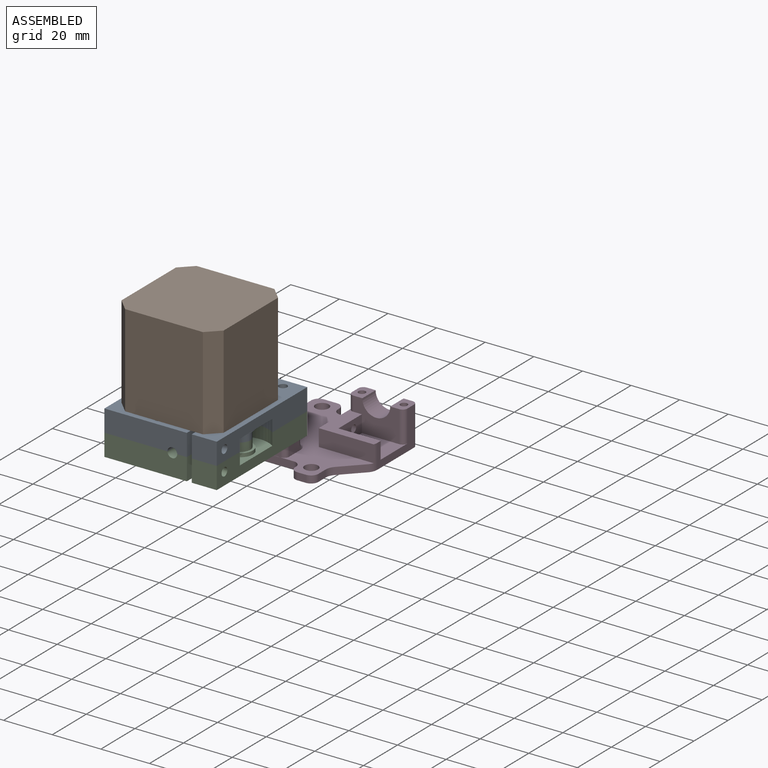
[diagram: assembled view]
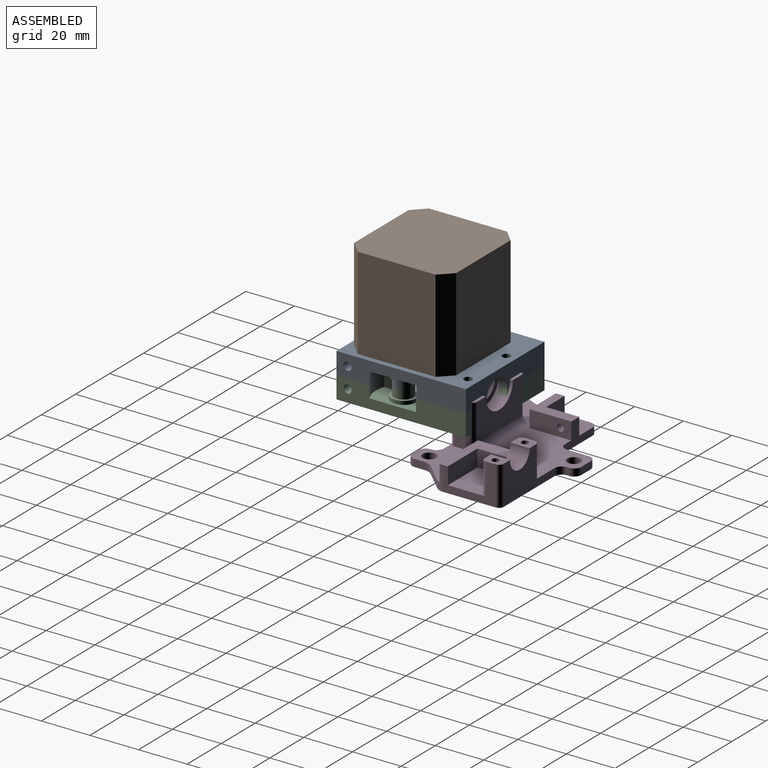
[diagram: assembled view, second angle]
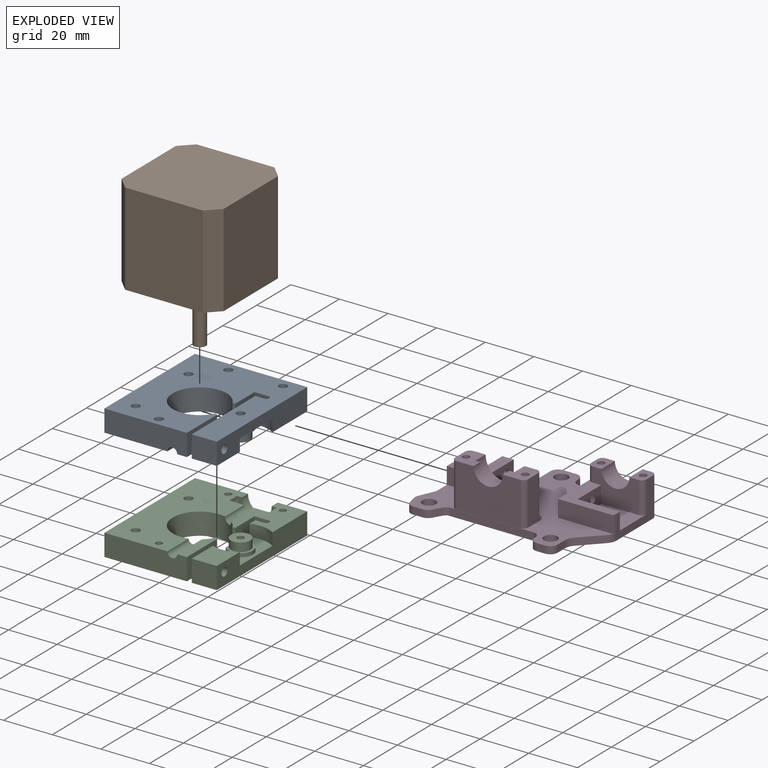
[diagram: exploded view]
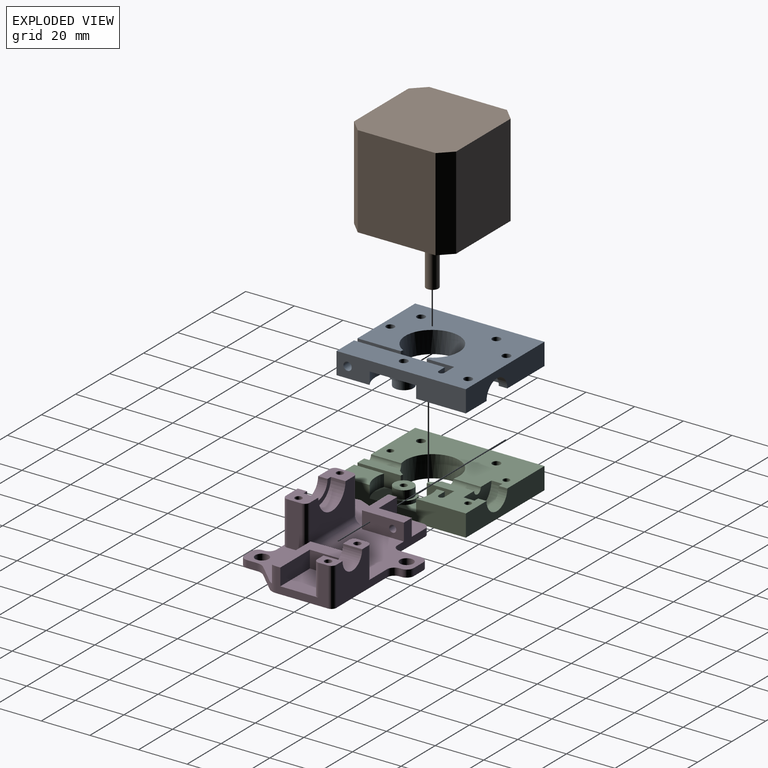
[diagram: exploded view, second angle]
ASSEMBLY  parts=4 mates=2
PART A: 41 faces, bbox 46.2x53.2x9 mm
  f0: plane 53.2x25.93mm, normal (0,0,-1), area 1042.9mm2, adj f3,f9,f10,f11,f16,f18,f21,f22
  f1: plane 18.06x3.98mm, normal (0,0,-1), area 65.8mm2, adj f3,f7,f11,f34,f39
  f2: plane 24.92x16.27mm, normal (0,0,-1), area 253mm2, adj f3,f4,f5,f8,f9,f12,f13,f14
  f3: cylinder r=11.1mm len=22.2mm, axis (0,0,-1), area 518mm2, adj f0,f1,f2,f20,f33,f34,f39,f40
  f4: plane 37.34x9mm, normal (-1,0,0), area 234.7mm2, adj f2,f6,f14,f15,f19,f20,f23,f24
  f5: plane 53.2x9mm, normal (1,0,0), area 374.2mm2, adj f2,f9,f15,f19,f20,f23,f25,f26
  f6: plane 8x7.89mm, normal (0,0,-1), area 41.1mm2, adj f4,f27,f38
  f7: plane 17.8x9mm, normal (1,0,0), area 154.1mm2, adj f1,f11,f20,f36,f39
  f8: plane 11.24x9mm, normal (1,0,0), area 101.2mm2, adj f2,f12,f20,f40
  f9: plane 46.2x9mm, normal (0,1,0), area 357.4mm2, adj f0,f2,f5,f10,f20,f32
  f10: plane 53.2x9mm, normal (-1,0,0), area 478.8mm2, adj f0,f9,f11,f20
  f11: plane 33.91x9mm, normal (0,-1,0), area 298.9mm2, adj f0,f1,f7,f10,f20,f34
  f12: plane 9x5.65mm, normal (0,-1,0), area 50.9mm2, adj f2,f8,f13,f20
  f13: cylinder r=1.22mm len=9mm, axis (0,0,1), area 34.4mm2, adj f2,f12,f14,f20
  f14: plane 9x3.65mm, normal (0,1,0), area 32.9mm2, adj f2,f4,f13,f20
  f15: plane 10.29x9mm, normal (0,-1,0), area 92.6mm2, adj f4,f5,f19,f20
  f16: cylinder r=1.7mm len=9mm, axis (0,0,1), area 96.1mm2, adj f0,f20
  f17: cylinder r=1.7mm len=9mm, axis (0,0,1), area 96.1mm2, adj f2,f20
  f18: cylinder r=1.7mm len=9mm, axis (0,0,1), area 96.1mm2, adj f0,f20
  f19: plane 13.62x10.29mm, normal (0,0,-1), area 125mm2, adj f4,f5,f15,f25
  f20: plane 53.2x46.2mm, normal (0,0,1), area 1923mm2, adj f3,f4,f5,f7,f8,f9,f10,f11
  f21: cylinder r=1.7mm len=9mm, axis (0,0,-1), area 96.1mm2, adj f0,f20
  f22: cylinder r=1.7mm len=9mm, axis (0,0,-1), area 96.1mm2, adj f0,f20
  f23: cylinder r=11.5mm len=10.29mm, axis (0,0,-1), area 53.8mm2, adj f2,f4,f5,f26
  f24: cylinder r=5mm len=10mm, axis (0,0,-1), area 36.9mm2, adj f4,f26,f28
  f25: cylinder r=11.5mm len=10.29mm, axis (0,0,-1), area 53.8mm2, adj f4,f5,f19,f26
  f26: plane 23x10.29mm, normal (0,0,-1), area 153.2mm2, adj f4,f5,f23,f24,f25
  f27: cylinder r=4mm len=8mm, axis (0,0,-1), area 81.4mm2, adj f4,f6,f28
  f28: plane 10x8.89mm, normal (0,0,-1), area 23.7mm2, adj f4,f24,f27
  f29: plane 16.4x8.2mm, normal (0,1,0), area 99.3mm2, adj f0,f2,f31,f33
  f30: plane 16.4x8.2mm, normal (0,-1,0), area 47.2mm2, adj f0,f2,f31,f32
  f31: cylinder r=8.2mm len=16.4mm, axis (0,-1,0), area 115.9mm2, adj f0,f2,f29,f30
  f32: cylinder r=6.1mm len=12.2mm, axis (0,-1,0), area 67.3mm2, adj f0,f2,f9,f30
  f33: cylinder r=2mm len=13.34mm, axis (0,-1,0), area 76.6mm2, adj f0,f2,f3,f29
  f34: cylinder r=2mm len=14.5mm, axis (0,-1,0), area 83.9mm2, adj f0,f1,f3,f11
  f35: plane 2.8x2.8mm, normal (1,0,0), area 6.2mm2, adj f36
  f36: cylinder r=1.4mm len=7.71mm, axis (1,0,0), area 67.8mm2, adj f7,f35
  f37: cylinder r=1.7mm len=10.29mm, axis (1,0,0), area 109.9mm2, adj f4,f5
  f38: cylinder r=1.7mm len=9mm, axis (0,0,-1), area 96.1mm2, adj f6,f20
  f39: plane 9x1.05mm, normal (0.24,0.97,0), area 9.8mm2, adj f1,f3,f7,f20
  f40: plane 9x1.05mm, normal (0.24,-0.97,0), area 9.8mm2, adj f2,f3,f8,f20
PART B: 22 faces, bbox 42x42x62 mm
  f0: plane 38x32mm, normal (-1,0,0), area 1216mm2, adj f4,f5,f8,f9
  f1: plane 38x32mm, normal (0,-1,0), area 1216mm2, adj f4,f5,f7,f9
  f2: plane 38x32mm, normal (1,0,0), area 1216mm2, adj f4,f5,f6,f7
  f3: plane 38x32mm, normal (0,1,0), area 1216mm2, adj f4,f5,f6,f8
  f4: plane 42x42mm, normal (0,0,1), area 1305.6mm2, adj f0,f1,f2,f3,f6,f7,f8,f9
  f5: plane 42x42mm, normal (0,0,-1), area 1714mm2, adj f0,f1,f2,f3,f6,f7,f8,f9
  f6: plane 38x5mm, normal (0.71,0.71,0), area 268.7mm2, adj f2,f3,f4,f5
  f7: plane 38x5mm, normal (0.71,-0.71,0), area 268.7mm2, adj f1,f2,f4,f5
  f8: plane 38x5mm, normal (-0.71,0.71,0), area 268.7mm2, adj f0,f3,f4,f5
  f9: plane 38x5mm, normal (-0.71,-0.71,0), area 268.7mm2, adj f0,f1,f4,f5
  f10: cylinder r=11mm len=22mm, axis (0,0,-1), area 138.2mm2, adj f4,f11
  f11: plane 22x22mm, normal (0,0,1), area 360.5mm2, adj f10,f12
  f12: cylinder r=2.5mm len=22mm, axis (0,0,-1), area 345.6mm2, adj f11,f13
  f13: plane 5x5mm, normal (0,0,1), area 19.6mm2, adj f12
  f14: cylinder r=1.5mm len=25mm, axis (0,0,1), area 235.6mm2, adj f4,f15
  f15: plane 3x3mm, normal (0,0,1), area 7.1mm2, adj f14
  f16: cylinder r=1.5mm len=25mm, axis (0,0,1), area 235.6mm2, adj f4,f17
  f17: plane 3x3mm, normal (0,0,1), area 7.1mm2, adj f16
  f18: cylinder r=1.5mm len=25mm, axis (0,0,1), area 235.6mm2, adj f4,f19
  f19: plane 3x3mm, normal (0,0,1), area 7.1mm2, adj f18
  f20: cylinder r=1.5mm len=25mm, axis (0,0,1), area 235.6mm2, adj f4,f21
  f21: plane 3x3mm, normal (0,0,1), area 7.1mm2, adj f20
PART C: 41 faces, bbox 46.2x53.2x9 mm
  f0: plane 53.2x25.93mm, normal (0,0,1), area 1049.6mm2, adj f3,f8,f9,f10,f17,f19,f22,f23
  f1: plane 18.06x3.98mm, normal (0,0,1), area 65.8mm2, adj f3,f7,f10,f34,f40
  f2: plane 24.92x16.27mm, normal (0,0,1), area 256.3mm2, adj f3,f4,f8,f11,f12,f13,f14,f16
  f3: cylinder r=11.1mm len=22.2mm, axis (0,0,1), area 518mm2, adj f0,f1,f2,f21,f30,f34,f39,f40
  f4: plane 37.34x9mm, normal (-1,0,0), area 234.7mm2, adj f2,f5,f6,f14,f15,f20,f21,f24
  f5: plane 8x7.89mm, normal (0,0,1), area 44mm2, adj f4,f27,f38
  f6: cylinder r=5mm len=10mm, axis (0,0,1), area 36.9mm2, adj f4,f26,f28
  f7: plane 17.8x9mm, normal (1,0,0), area 154.1mm2, adj f1,f10,f21,f35,f40
  f8: plane 46.2x9mm, normal (0,1,0), area 357.4mm2, adj f0,f2,f9,f18,f21,f31
  f9: plane 53.2x9mm, normal (-1,0,0), area 478.8mm2, adj f0,f8,f10,f21
  f10: plane 33.91x9mm, normal (0,-1,0), area 298.9mm2, adj f0,f1,f7,f9,f21,f34
  f11: plane 11.24x9mm, normal (1,0,0), area 101.2mm2, adj f2,f12,f21,f39
  f12: plane 9x5.65mm, normal (0,-1,0), area 50.9mm2, adj f2,f11,f13,f21
  f13: cylinder r=1.22mm len=9mm, axis (0,0,-1), area 34.4mm2, adj f2,f12,f14,f21
  f14: plane 9x3.65mm, normal (0,1,0), area 32.9mm2, adj f2,f4,f13,f21
  f15: plane 10.29x9mm, normal (0,-1,0), area 92.6mm2, adj f4,f18,f20,f21
  f16: cylinder r=1.35mm len=9mm, axis (0,0,-1), area 76.3mm2, adj f2,f21
  f17: cylinder r=1.35mm len=9mm, axis (0,0,-1), area 76.3mm2, adj f0,f21
  f18: plane 53.2x9mm, normal (1,0,0), area 374.2mm2, adj f2,f8,f15,f20,f21,f24,f25,f26
  f19: cylinder r=1.35mm len=9mm, axis (0,0,-1), area 76.3mm2, adj f0,f21
  f20: plane 13.62x10.29mm, normal (0,0,1), area 125mm2, adj f4,f15,f18,f25
  f21: plane 53.2x46.2mm, normal (0,0,-1), area 1936mm2, adj f3,f4,f7,f8,f9,f10,f11,f12
  f22: cylinder r=1.7mm len=9mm, axis (0,0,1), area 96.1mm2, adj f0,f21
  f23: cylinder r=1.7mm len=9mm, axis (0,0,1), area 96.1mm2, adj f0,f21
  f24: cylinder r=11.5mm len=10.29mm, axis (0,0,1), area 53.8mm2, adj f2,f4,f18,f26
  f25: cylinder r=11.5mm len=10.29mm, axis (0,0,1), area 53.8mm2, adj f4,f18,f20,f26
  f26: plane 23x10.29mm, normal (0,0,1), area 153.2mm2, adj f4,f6,f18,f24,f25
  f27: cylinder r=4mm len=8mm, axis (0,0,1), area 81.4mm2, adj f4,f5,f28
  f28: plane 10x8.89mm, normal (0,0,1), area 23.7mm2, adj f4,f6,f27
  f29: plane 16.4x8.2mm, normal (0,1,0), area 99.3mm2, adj f0,f2,f30,f33
  f30: cylinder r=2mm len=13.34mm, axis (0,-1,0), area 76.6mm2, adj f0,f2,f3,f29
  f31: cylinder r=6.1mm len=12.2mm, axis (0,-1,0), area 67.3mm2, adj f0,f2,f8,f32
  f32: plane 16.4x8.2mm, normal (0,-1,0), area 47.2mm2, adj f0,f2,f31,f33
  f33: cylinder r=8.2mm len=16.4mm, axis (0,-1,0), area 115.9mm2, adj f0,f2,f29,f32
  f34: cylinder r=2mm len=14.5mm, axis (0,-1,0), area 83.9mm2, adj f0,f1,f3,f10
  f35: cylinder r=1.4mm len=7.71mm, axis (1,0,0), area 67.8mm2, adj f7,f36
  f36: plane 2.8x2.8mm, normal (1,0,0), area 6.2mm2, adj f35
  f37: cylinder r=1.7mm len=10.29mm, axis (1,0,0), area 109.9mm2, adj f4,f18
  f38: cylinder r=1.4mm len=9mm, axis (0,0,1), area 79.2mm2, adj f5,f21
  f39: plane 9x1.05mm, normal (0.24,-0.97,0), area 9.8mm2, adj f2,f3,f11,f21
  f40: plane 9x1.05mm, normal (0.24,0.97,0), area 9.8mm2, adj f1,f3,f7,f21
PART D: 77 faces, bbox 71.9x52.8x22 mm
  f0: plane 18.87x13mm, normal (0,1,0), area 168.8mm2, adj f1,f3,f37,f40,f50,f51,f67,f68
  f1: plane 7.85x5.69mm, normal (0,0,1), area 36.3mm2, adj f0,f6,f38,f49,f51,f67,f69
  f2: plane 71.56x52.75mm, normal (0,0,1), area 1368mm2, adj f6,f7,f8,f9,f10,f11,f12,f13
  f3: plane 17.35x15.77mm, normal (0,0,1), area 239.8mm2, adj f0,f24,f36,f37,f68
  f4: plane 13.59x10.86mm, normal (0,0,1), area 145.6mm2, adj f10,f11,f41,f42,f56
  f5: plane 9.87x9.04mm, normal (0,0,1), area 68.9mm2, adj f27,f28,f29,f30,f33,f34,f35,f73
  f6: plane 29.81x16mm, normal (0,-1,0), area 282.9mm2, adj f1,f2,f25,f50,f51,f52,f69,f70
  f7: plane 3x0.86mm, normal (-1,0,0), area 2.6mm2, adj f2,f25,f52,f53
  f8: plane 5.48x3mm, normal (0,-1,0), area 16.5mm2, adj f2,f25,f53,f54
  f9: plane 8.89x3mm, normal (1,0,0), area 26.7mm2, adj f2,f25,f54,f55
  f10: plane 16.35x10mm, normal (0,-1,0), area 81.4mm2, adj f2,f4,f25,f41,f44,f45,f55,f56
  f11: plane 20.25x10mm, normal (1,0,0), area 86.1mm2, adj f2,f4,f12,f25,f42,f43,f45,f56
  f12: plane 6.88x3mm, normal (0.92,-0.4,0), area 22.5mm2, adj f2,f11,f25,f57
  f13: plane 3.55x3mm, normal (0.97,0.22,0), area 10.9mm2, adj f2,f25,f57,f58
  f14: plane 4.07x3mm, normal (0,1,0), area 12.2mm2, adj f2,f25,f58,f59
  f15: plane 3.38x3mm, normal (-0.87,0.5,0), area 11.7mm2, adj f2,f25,f59,f60
  f16: plane 33.64x3mm, normal (0,1,0), area 100.9mm2, adj f2,f25,f60,f61
  f17: plane 3x0.41mm, normal (1,0,0), area 1.2mm2, adj f2,f25,f61,f62
  f18: plane 3.49x3mm, normal (0,1,0), area 10.5mm2, adj f2,f25,f62,f63
  f19: plane 4.26x3mm, normal (-1,0,0), area 12.8mm2, adj f2,f25,f63,f65
  f20: plane 8.17x7.9mm, normal (-0.72,0.7,0), area 34.1mm2, adj f2,f25,f65,f66
  f21: cylinder r=2.75mm len=5.5mm, axis (0,0,-1), area 51.8mm2, adj f2,f25
  f22: cylinder r=2.75mm len=5.5mm, axis (0,0,-1), area 51.8mm2, adj f2,f25
  f23: cylinder r=2.75mm len=5.5mm, axis (0,0,-1), area 51.8mm2, adj f2,f25
  f24: plane 21.52x16mm, normal (-1,0,0), area 127.9mm2, adj f3,f25,f36,f40,f50,f66,f68,f70
  f25: plane 71.86x52.75mm, normal (0,0,-1), area 2560.5mm2, adj f6,f7,f8,f9,f10,f11,f12,f13
  f26: plane 18x6.83mm, normal (-1,0,0), area 105.9mm2, adj f2,f32,f71,f72,f76
  f27: plane 26.08x15mm, normal (0,-1,0), area 290.6mm2, adj f5,f32,f33,f64,f71,f73
  f28: plane 18x6.87mm, normal (1,0,0), area 106.7mm2, adj f2,f5,f73,f74,f75
  f29: cylinder r=1.45mm len=21mm, axis (0,0,-1), area 191.3mm2, adj f5,f25
  f30: plane 26.08x18mm, normal (0,1,0), area 412.8mm2, adj f2,f5,f32,f35,f75,f76
  f31: cylinder r=1.45mm len=21mm, axis (0,0,-1), area 191.3mm2, adj f25,f32
  f32: plane 9.84x9.04mm, normal (0,0,1), area 68.6mm2, adj f26,f27,f30,f31,f33,f34,f35,f71
  f33: cylinder r=8mm len=16mm, axis (0,-1,0), area 150.8mm2, adj f5,f27,f32,f34
  f34: plane 16x8mm, normal (0,-1,0), area 44mm2, adj f5,f32,f33,f35
  f35: cylinder r=6mm len=12.01mm, axis (0,1,0), area 72.6mm2, adj f5,f30,f32,f34
  f36: plane 17.35x7mm, normal (0,-1,0), area 121.5mm2, adj f3,f24,f37,f40
  f37: plane 13.77x7mm, normal (-1,0,0), area 89.8mm2, adj f0,f3,f36,f40,f47
  f38: plane 23.24x13mm, normal (1,0,0), area 179.1mm2, adj f1,f2,f39,f40,f47,f67,f69
  f39: plane 22.57x7mm, normal (0,1,0), area 158mm2, adj f2,f38,f40,f66
  f40: plane 22.87x19.39mm, normal (0,0,1), area 159.5mm2, adj f0,f24,f36,f37,f38,f39,f66,f67
  f41: plane 13.59x7mm, normal (1,0,0), area 88.5mm2, adj f4,f10,f42,f45,f46
  f42: plane 10.86x7mm, normal (0,-1,0), area 76mm2, adj f4,f11,f41,f45
  f43: plane 15.48x7mm, normal (0,1,0), area 108.4mm2, adj f2,f11,f44,f45
  f44: plane 17.21x7mm, normal (-1,0,0), area 113.9mm2, adj f2,f10,f43,f45,f46
  f45: plane 17.21x15.48mm, normal (0,0,1), area 118.9mm2, adj f10,f11,f41,f42,f43,f44
  f46: cylinder r=1.45mm len=4.62mm, axis (1,0,0), area 42.1mm2, adj f41,f44
  f47: cylinder r=1.45mm len=5.52mm, axis (1,0,0), area 50.3mm2, adj f37,f38
  f48: cylinder r=1.45mm len=16mm, axis (0,0,-1), area 145.8mm2, adj f25,f50
  f49: cylinder r=1.45mm len=16mm, axis (0,0,-1), area 145.8mm2, adj f1,f25
  f50: plane 7.85x5.69mm, normal (0,0,1), area 36.3mm2, adj f0,f6,f24,f48,f51,f68,f70
  f51: cylinder r=5.75mm len=11.5mm, axis (0,1,0), area 141.7mm2, adj f0,f1,f6,f50
  f52: cylinder r=3mm len=3mm, axis (0,0,-1), area 14.1mm2, adj f2,f6,f7,f25
  f53: cylinder r=3mm len=3mm, axis (0,0,-1), area 14.1mm2, adj f2,f7,f8,f25
  f54: cylinder r=3mm len=3mm, axis (0,0,-1), area 14.1mm2, adj f2,f8,f9,f25
  f55: cylinder r=3mm len=3mm, axis (0,0,-1), area 14.1mm2, adj f2,f9,f10,f25
  f56: cylinder r=3mm len=3mm, axis (0,0,-1), area 14.1mm2, adj f4,f10,f11,f25
  f57: cylinder r=3mm len=3mm, axis (0,0,-1), area 5.7mm2, adj f2,f12,f13,f25
  f58: cylinder r=3mm len=3mm, axis (0,0,-1), area 12.1mm2, adj f2,f13,f14,f25
  f59: cylinder r=3mm len=3mm, axis (0,0,-1), area 9.5mm2, adj f2,f14,f15,f25
  f60: cylinder r=3mm len=3mm, axis (0,0,1), area 9.5mm2, adj f2,f15,f16,f25
  f61: cylinder r=3mm len=3mm, axis (0,0,1), area 14.1mm2, adj f2,f16,f17,f25
  f62: cylinder r=3mm len=3mm, axis (0,0,-1), area 14.1mm2, adj f2,f17,f18,f25
  f63: cylinder r=3mm len=3mm, axis (0,0,-1), area 14.1mm2, adj f2,f18,f19,f25
  f64: cylinder r=3mm len=26.08mm, axis (1,0,0), area 122.9mm2, adj f2,f27,f72,f74
  f65: cylinder r=5mm len=3.48mm, axis (0,0,1), area 11.5mm2, adj f2,f19,f20,f25
  f66: cylinder r=5mm len=10mm, axis (0,0,-1), area 23.8mm2, adj f2,f20,f24,f25,f39,f40
  f67: cylinder r=2mm len=6mm, axis (0,0,1), area 18.8mm2, adj f0,f1,f38,f40
  f68: cylinder r=2mm len=13mm, axis (0,0,1), area 40.8mm2, adj f0,f3,f24,f50
  f69: cylinder r=2mm len=13mm, axis (0,0,-1), area 40.8mm2, adj f1,f2,f6,f38
  f70: cylinder r=2mm len=16mm, axis (0,0,-1), area 50.3mm2, adj f6,f24,f25,f50
  f71: cylinder r=2mm len=15mm, axis (0,0,1), area 47.1mm2, adj f26,f27,f32,f72
  f72: torus R=5mm, axis (-1,0,0), area 11.6mm2, adj f2,f26,f64,f71
  f73: cylinder r=2mm len=15mm, axis (0,0,1), area 47.1mm2, adj f5,f27,f28,f74
  f74: torus R=5mm, axis (1,0,0), area 11.6mm2, adj f2,f28,f64,f73
  f75: cylinder r=2mm len=18mm, axis (0,0,-1), area 56.6mm2, adj f2,f5,f28,f30
  f76: cylinder r=2mm len=18mm, axis (0,0,-1), area 56.5mm2, adj f2,f26,f30,f32
PLACE A t=(0,0,-9.4)mm
PLACE B rot(axis=(0.71,-0.71,0),180deg) t=(19.57,26.82,46.6)mm
PLACE C t=(0,0,-9.4)mm
PLACE D rot(axis=(0,0,-1),180deg) t=(17.35,63.76,-18.58)mm
MATE fastened B.f20 <-> A.f22  axis (0,0,-1) through (-16.93,21.32,8.6)mm
MATE fastened A.f18 <-> C.f19  axis (0,0,-1) through (-4.59,-13.67,-0.4)mm
